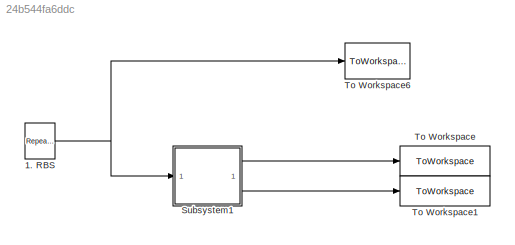
MODEL slx_24b544fa6ddc
KIND model
CONFIG AbsTol = auto
CONFIG EnableMultiTasking = off
CONFIG FixedStep = auto
CONFIG MaxStep = 0.01
CONFIG MinStep = auto
CONFIG RelTol = 1e-3
CONFIG SampleTimeConstraint = Unconstrained
CONFIG SolverName = VariableStepAuto
CONFIG StartTime = 0.0
CONFIG StopTime = tmax
BLOCK [Reference] 1. RBS  REF=simulink/Sources/Repeating
Sequence
Stair
  SourceBlock = simulink/Sources/Repeating\nSequence\nStair
  SourceType = Repeating Sequence Stair
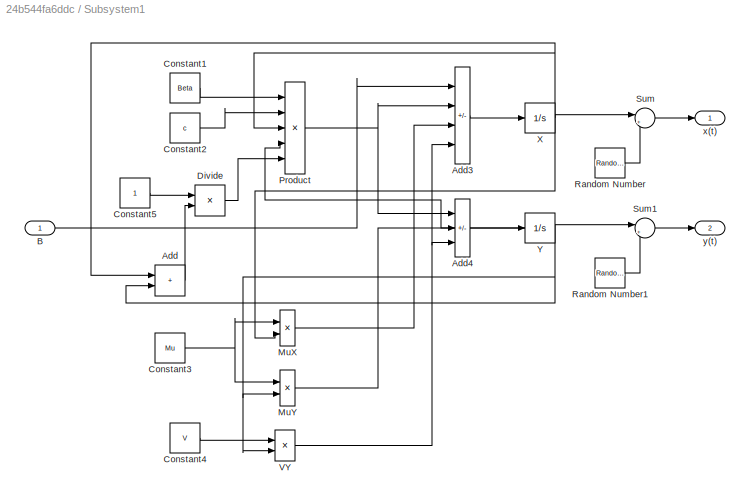
BLOCK [SubSystem] Subsystem1
BLOCK [Sum] Subsystem1/Add
  IconShape = rectangular
BLOCK [Sum] Subsystem1/Add3
  IconShape = rectangular
  Inputs = +--+
BLOCK [Sum] Subsystem1/Add4
  IconShape = rectangular
  Inputs = +--
BLOCK [Inport] Subsystem1/B
BLOCK [Constant] Subsystem1/Constant1
  Value = Beta
BLOCK [Constant] Subsystem1/Constant2
  Value = c
BLOCK [Constant] Subsystem1/Constant3
  Value = Mu
BLOCK [Constant] Subsystem1/Constant4
  Value = V
BLOCK [Constant] Subsystem1/Constant5
BLOCK [Product] Subsystem1/Divide
  Inputs = */
BLOCK [Product] Subsystem1/MuX
BLOCK [Product] Subsystem1/MuY
BLOCK [Product] Subsystem1/Product
  Inputs = 5
BLOCK [RandomNumber] Subsystem1/Random Number
  SampleTime = Ts
  Variance = 64
BLOCK [RandomNumber] Subsystem1/Random Number1
  SampleTime = Ts
  Variance = 640
BLOCK [Sum] Subsystem1/Sum
  Inputs = |++
BLOCK [Sum] Subsystem1/Sum1
  Inputs = |++
BLOCK [Product] Subsystem1/VY
BLOCK [Integrator] Subsystem1/X
  InitialCondition = X0(1)
  LimitOutput = on
  LowerSaturationLimit = 0
BLOCK [Integrator] Subsystem1/Y
  InitialCondition = X0(2)
  LimitOutput = on
  LowerSaturationLimit = 0
BLOCK [Outport] Subsystem1/x(t)
BLOCK [Outport] Subsystem1/y(t)
  Port = 2
BLOCK [ToWorkspace] To Workspace
  FixptAsFi = on
  MaxDataPoints = inf
  SampleTime = Ts
  SaveFormat = Structure With Time
  VariableName = X_Exp
BLOCK [ToWorkspace] To Workspace1
  FixptAsFi = on
  MaxDataPoints = inf
  SampleTime = Ts
  SaveFormat = Structure With Time
  VariableName = Y_Exp
BLOCK [ToWorkspace] To Workspace6
  FixptAsFi = on
  MaxDataPoints = inf
  SampleTime = Ts
  SaveFormat = Structure With Time
  VariableName = U_Exp
NET 1. RBS:1 -> Subsystem1:1, To Workspace6:1
LINE Subsystem1/Add3:1 -> Subsystem1/X:1
LINE Subsystem1/Add4:1 -> Subsystem1/Y:1
LINE Subsystem1/Add:1 -> Subsystem1/Divide:2
LINE Subsystem1/B:1 -> Subsystem1/Add3:1
LINE Subsystem1/Constant1:1 -> Subsystem1/Product:1
LINE Subsystem1/Constant2:1 -> Subsystem1/Product:2
NET Subsystem1/Constant3:1 -> Subsystem1/MuX:1, Subsystem1/MuY:1
LINE Subsystem1/Constant4:1 -> Subsystem1/VY:1
LINE Subsystem1/Constant5:1 -> Subsystem1/Divide:1
LINE Subsystem1/Divide:1 -> Subsystem1/Product:5
LINE Subsystem1/MuX:1 -> Subsystem1/Add3:3
LINE Subsystem1/MuY:1 -> Subsystem1/Add4:2
NET Subsystem1/Product:1 -> Subsystem1/Add3:2, Subsystem1/Add4:1
LINE Subsystem1/Random Number1:1 -> Subsystem1/Sum1:2
LINE Subsystem1/Random Number:1 -> Subsystem1/Sum:2
LINE Subsystem1/Sum1:1 -> Subsystem1/y(t):1
LINE Subsystem1/Sum:1 -> Subsystem1/x(t):1
NET Subsystem1/VY:1 -> Subsystem1/Add3:4, Subsystem1/Add4:3
NET Subsystem1/X:1 -> Subsystem1/Add:1, Subsystem1/MuX:2, Subsystem1/Product:3, Subsystem1/Sum:1
NET Subsystem1/Y:1 -> Subsystem1/Add:2, Subsystem1/MuY:2, Subsystem1/Product:4, Subsystem1/Sum1:1, Subsystem1/VY:2
LINE Subsystem1:1 -> To Workspace:1
LINE Subsystem1:2 -> To Workspace1:1
note: NET lines group one-source signal fan-out (src -> all destinations, sorted); 1:1 wires keep LINE
